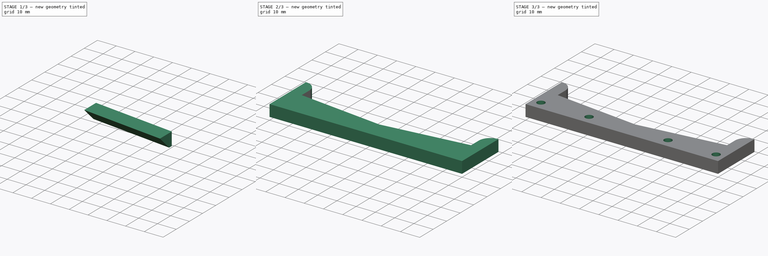
[diagram: build sequence overview — one tinted view per stage of 3, left to right]
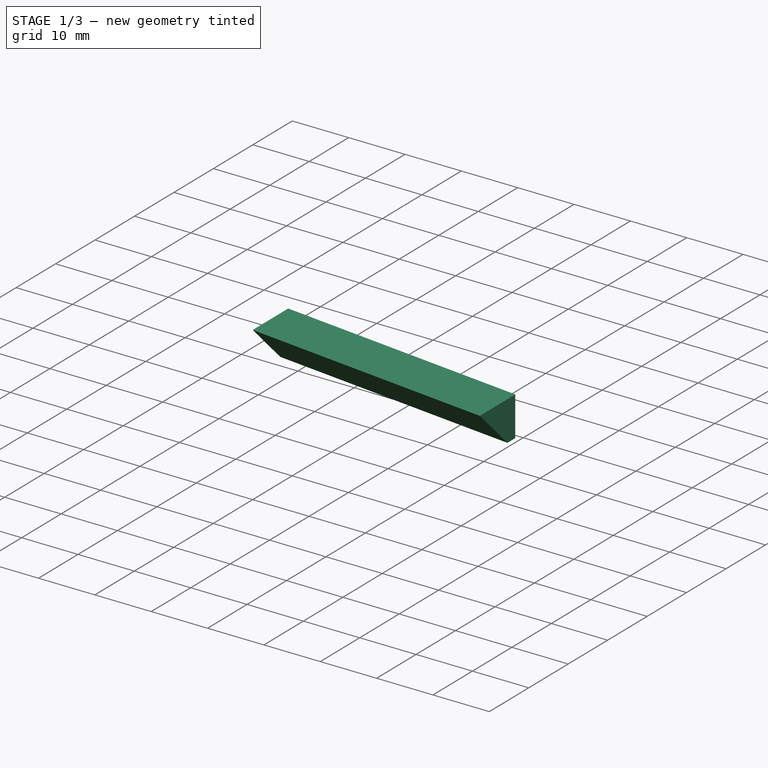
[diagram: stage 1 of 3 — iso view after this stage's code; geometry added in this stage tinted green]
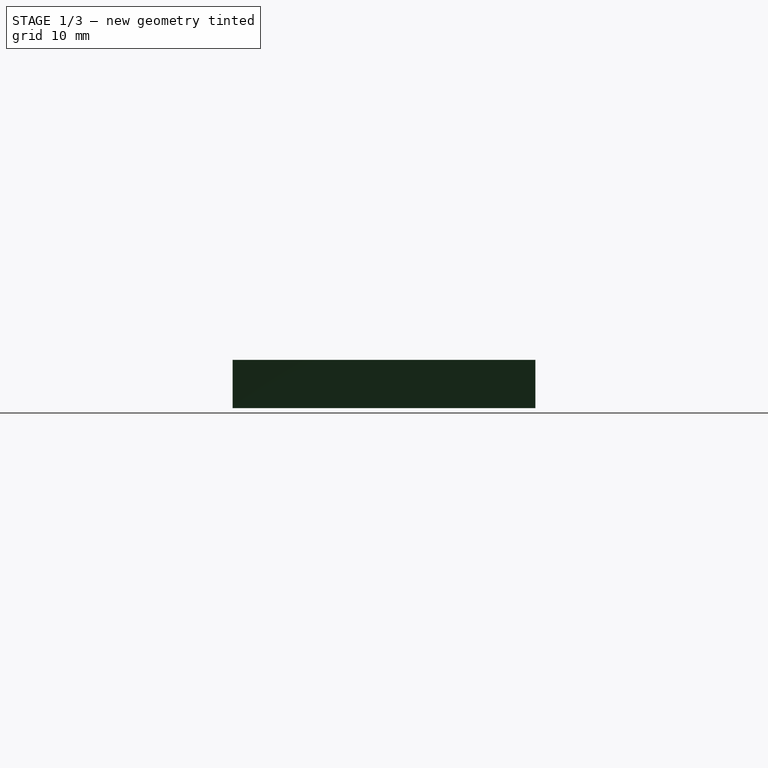
[diagram: stage 1 of 3 — front view after this stage's code; geometry added in this stage tinted green]
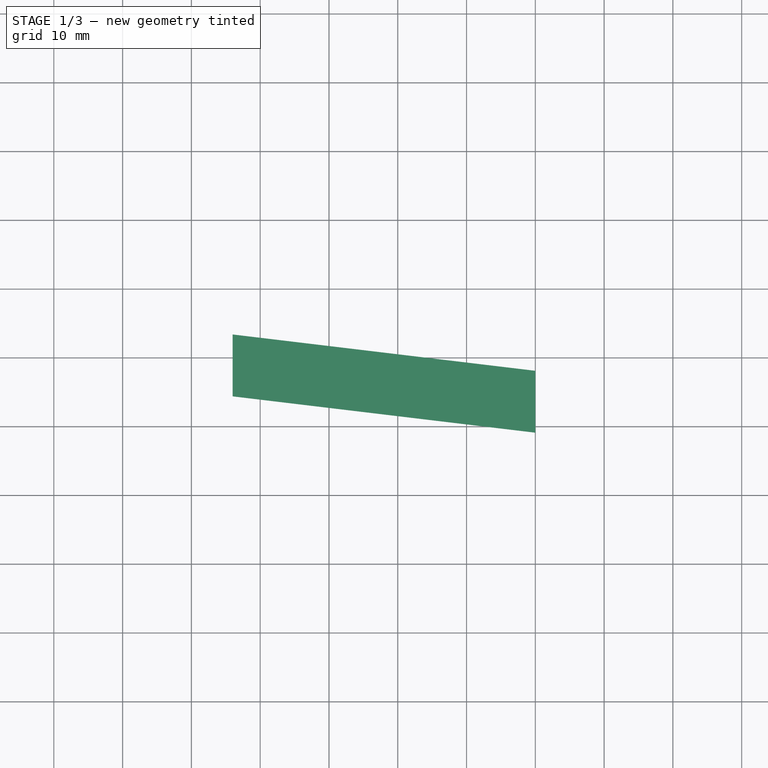
[diagram: stage 1 of 3 — top view after this stage's code; geometry added in this stage tinted green]
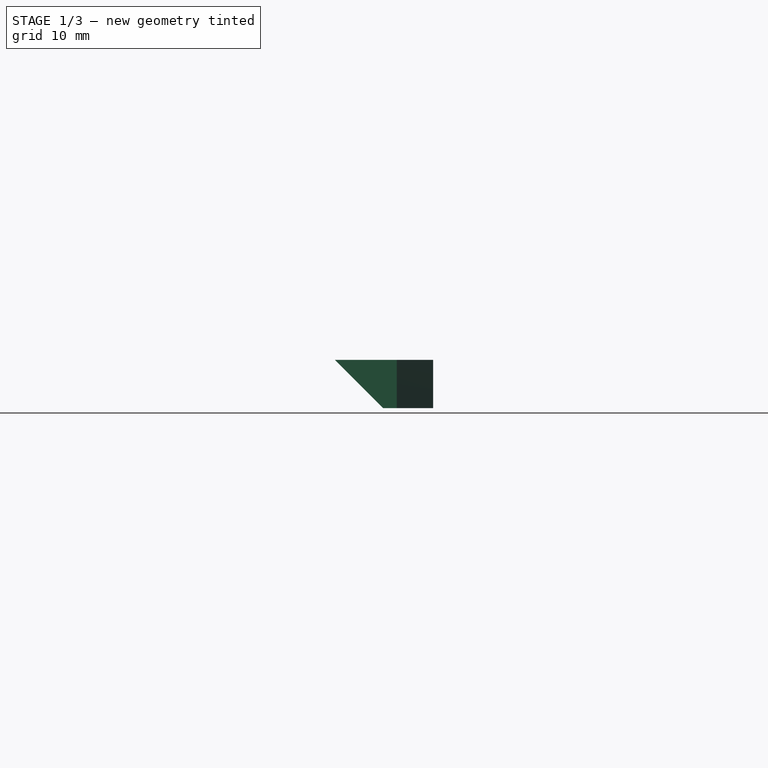
[diagram: stage 1 of 3 — right view after this stage's code; geometry added in this stage tinted green]
FCSTD DOCUMENT
Label: X_Carriage_QuickGuide
objects: Sketcher::SketchObject×3, PartDesign::Pad×1, Part::Sweep×1, Part::Mirroring×1, Part::MultiFuse×1, Part::Cut×1, PartDesign::Pocket×1, PartDesign::LinearPattern×1
note: 12 computed .brp shape members not serialized (recipe doc carries the construction recipe); baked Part::Feature solids carry a one-line shape summary decoded from their .brp

FEATURE [Sketcher::SketchObject] Sketch
  sketch-geometry (9):
    g0: LineSegment StartX=0 StartY=0 StartZ=0 EndX=100 EndY=0 EndZ=0
    g1: LineSegment StartX=0 StartY=27 StartZ=0 EndX=0 EndY=0 EndZ=0
    g2: LineSegment StartX=50 StartY=16 StartZ=0 EndX=6 EndY=21.28 EndZ=0
    g3: ArcOfCircle CenterX=0 CenterY=20.9931 CenterZ=0 NormalX=0 NormalY=0 NormalZ=1 Radius=6.00685 StartAngle=0.0477725 EndAngle=1.5708
    g4: LineSegment [constr] StartX=6 StartY=21.28 StartZ=0 EndX=0 EndY=21.28 EndZ=0
    g5: LineSegment StartX=100 StartY=0 StartZ=0 EndX=100 EndY=27 EndZ=0
    g6: ArcOfCircle CenterX=100 CenterY=20.9931 CenterZ=0 NormalX=0 NormalY=0 NormalZ=1 Radius=6.00685 StartAngle=1.5708 EndAngle=3.09382
    g7: LineSegment StartX=94 StartY=21.28 StartZ=0 EndX=50 EndY=16 EndZ=0
    g8: LineSegment [constr] StartX=94 StartY=21.28 StartZ=0 EndX=100 EndY=21.28 EndZ=0
  constraints (28):
    c: Coincident(g1,g0)
    c: Horizontal(g0)
    c: Vertical(g1)
    c: Coincident(g0,g-1)
    c: Coincident(g3,g2)
    c: Coincident(g3,g1)
    c: DistanceY(g1) = -27
    c: DistanceX(g0) = 100
    c: Coincident(g4,g2)
    c: Horizontal(g4)
    c: DistanceY(g-1,g2) = 16
    c: Coincident(g0,g5)
    c: Vertical(g5)
    c: Coincident(g6,g7)
    c: Coincident(g7,g2)
    c: Equal(g6,g3)
    c: Equal(g5,g1)
    c: Equal(g7,g2)
    c: Coincident(g8,g6)
    c: Horizontal(g8)
    c: PointOnObject(g4,g1)
    c: PointOnObject(g8,g5)
    c: DistanceX(g8) = 6
    c: Coincident(g6,g5)
    c: DistanceY(g8,g5) = 5.72
    c: DistanceY(g4,g1) = 5.72
    c: Equal(g8,g4)
    c: PointOnObject(g3,g1)
FEATURE [PartDesign::Pad] Pad
  Length = 6
  Length2 = 100
  Sketch = -> Sketch
  Type = 0
FEATURE [Sketcher::SketchObject] Sketch001
  Placement = pos=(50,0,0) rot=(0.57735,0.57735,0.57735;2.0944rad)
  sketch-geometry (4):
    g0: LineSegment StartX=18 StartY=0 StartZ=0 EndX=16 EndY=0 EndZ=0
    g1: LineSegment StartX=16 StartY=0 StartZ=0 EndX=9 EndY=7 EndZ=0
    g2: LineSegment StartX=9 StartY=7 StartZ=0 EndX=18 EndY=7 EndZ=0
    g3: LineSegment StartX=18 StartY=7 StartZ=0 EndX=18 EndY=0 EndZ=0
  constraints (12):
    c: Coincident(g0,g1)
    c: Coincident(g1,g2)
    c: Coincident(g2,g3)
    c: Coincident(g3,g0)
    c: Horizontal(g0)
    c: Horizontal(g2)
    c: Vertical(g3)
    c: PointOnObject(g0,g-1)
    c: Angle(g1,g2) = 0.785398
    c: DistanceY(g3) = -7
    c: DistanceX(g0) = -2
    c: DistanceX(g0) = 16
FEATURE [Part::Sweep] Sweep
  Frenet = false
  Sections = -> [Sketch001]
  Solid = true
  Spine = -> Pad [Edge12]
  Transition = 1
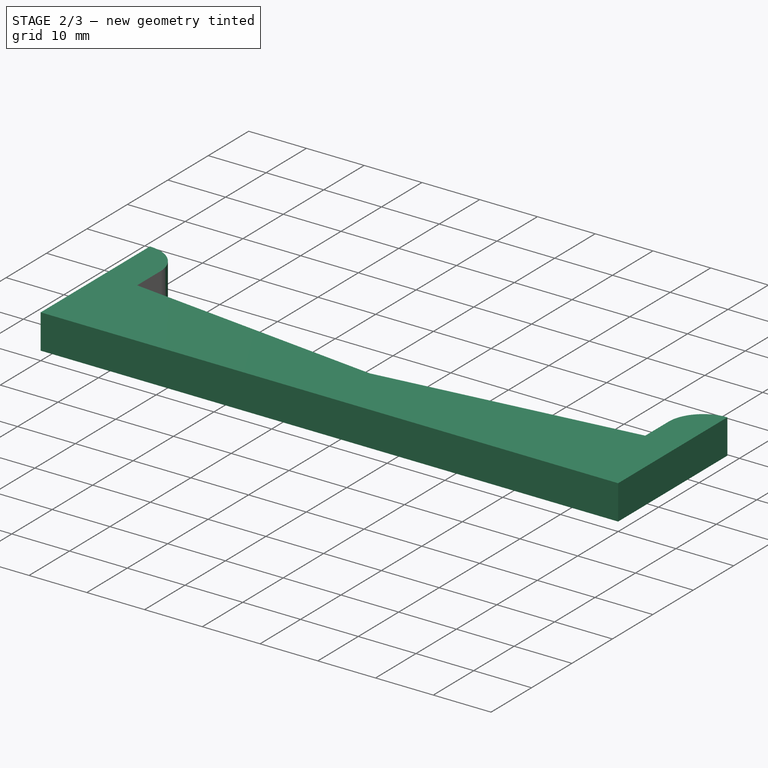
[diagram: stage 2 of 3 — iso view after this stage's code; geometry added in this stage tinted green]
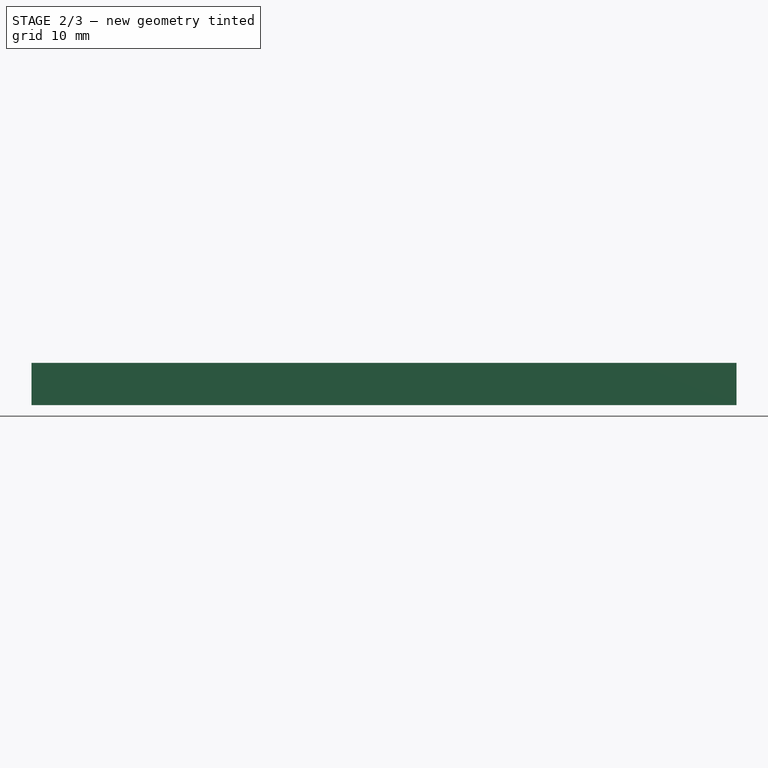
[diagram: stage 2 of 3 — front view after this stage's code; geometry added in this stage tinted green]
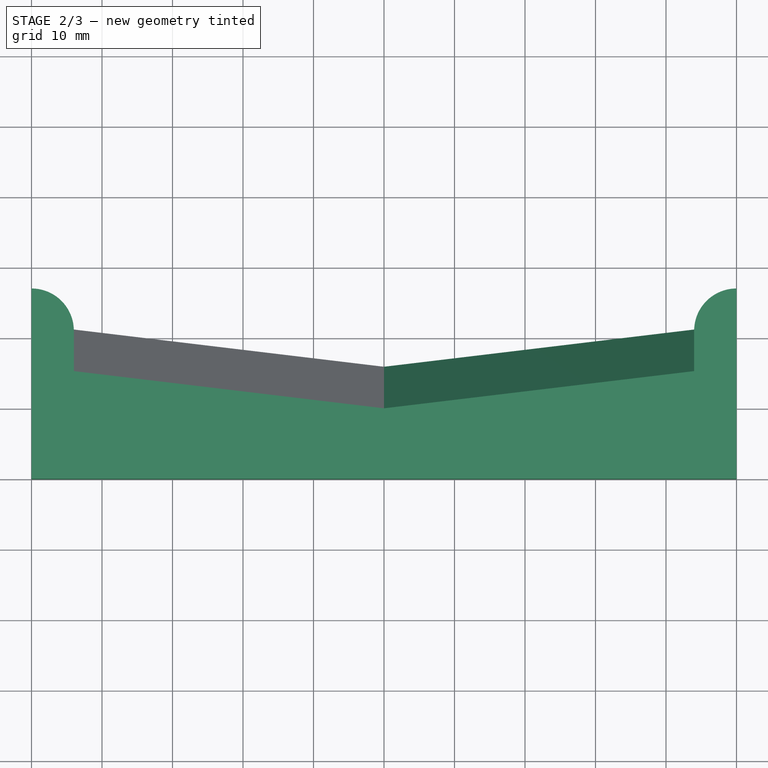
[diagram: stage 2 of 3 — top view after this stage's code; geometry added in this stage tinted green]
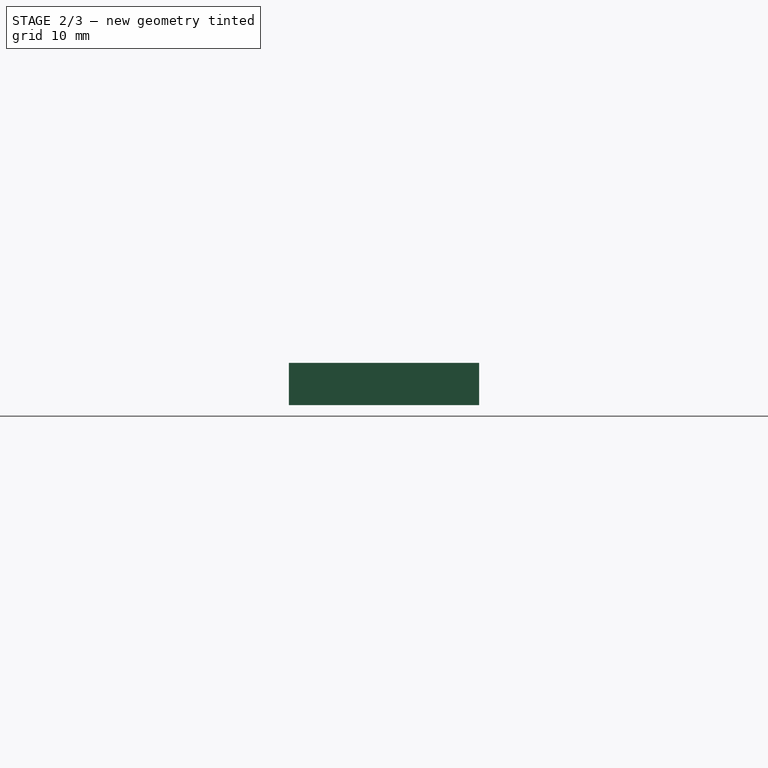
[diagram: stage 2 of 3 — right view after this stage's code; geometry added in this stage tinted green]
FEATURE [Part::Mirroring] Part__Mirroring  label="Sweep (Mirror #1)"
  Base = (50,0,0)
  Normal = (1,0,0)
  Source = -> Sweep
FEATURE [Part::MultiFuse] Fusion
  Shapes = -> [Sweep,Part__Mirroring]
FEATURE [Part::Cut] Cut
  Base = -> Pad
  Tool = -> Fusion
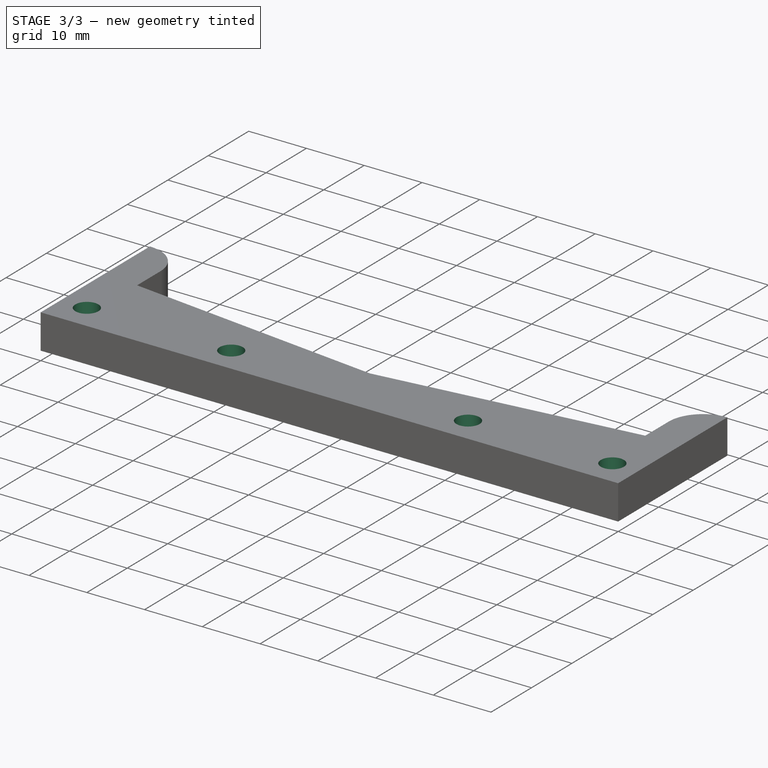
[diagram: stage 3 of 3 — iso view after this stage's code; geometry added in this stage tinted green]
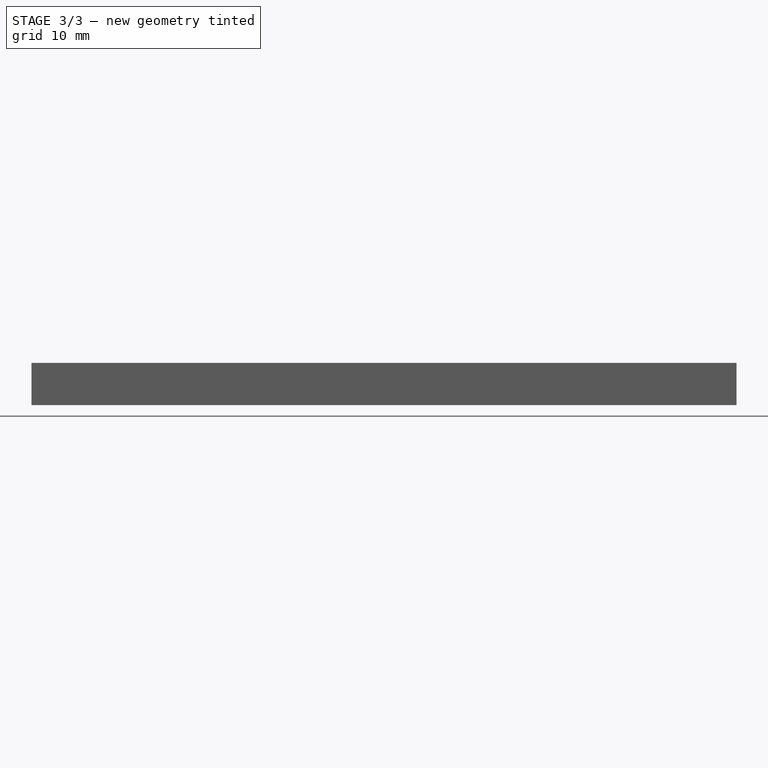
[diagram: stage 3 of 3 — front view after this stage's code; geometry added in this stage tinted green]
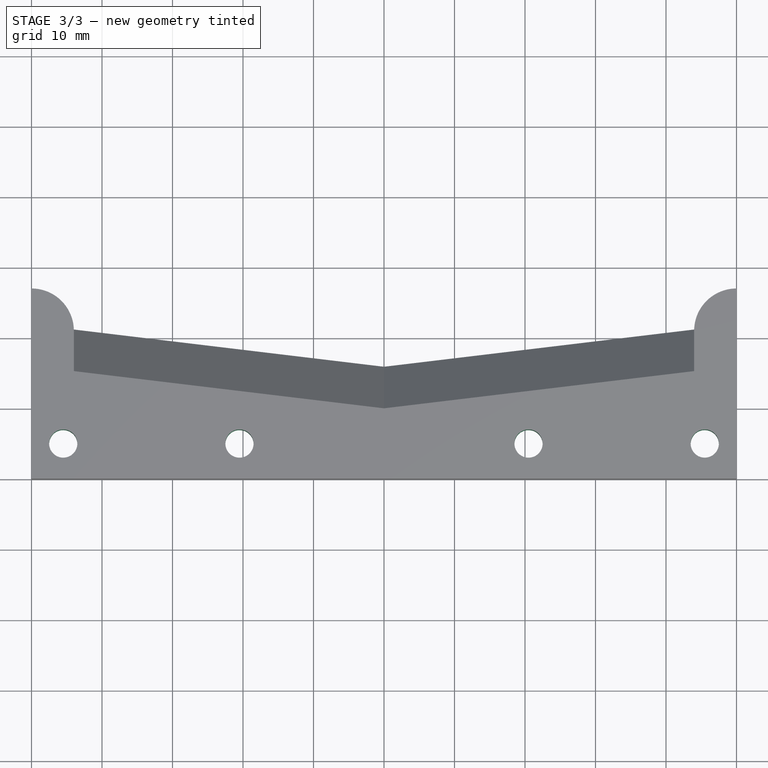
[diagram: stage 3 of 3 — top view after this stage's code; geometry added in this stage tinted green]
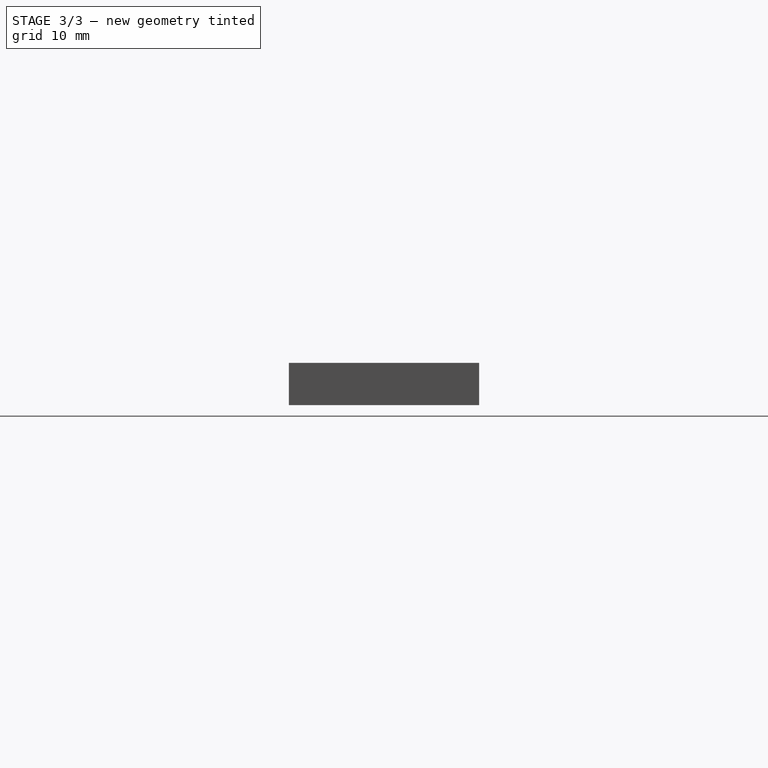
[diagram: stage 3 of 3 — right view after this stage's code; geometry added in this stage tinted green]
FEATURE [Sketcher::SketchObject] Sketch002
  ExternalGeometry = -> [Cut]
  Placement = pos=(0,0,6) rot=(0,0,1;0rad)
  Support = -> Cut [Face5]
  sketch-geometry (3):
    g0: Circle CenterX=4.5 CenterY=5 CenterZ=0 NormalX=0 NormalY=0 NormalZ=1 Radius=2
    g1: LineSegment [constr] StartX=4.5 StartY=5 StartZ=0 EndX=29.5 EndY=5 EndZ=0
    g2: Circle CenterX=29.5 CenterY=5 CenterZ=0 NormalX=0 NormalY=0 NormalZ=1 Radius=2
  constraints (8):
    c: Coincident(g1,g0)
    c: Horizontal(g1)
    c: Coincident(g2,g1)
    c: Equal(g2,g0)
    c: Radius(g2) = 2
    c: DistanceX(g1) = 25
    c: DistanceX(g-1,g0) = 4.5
    c: DistanceY(g-1,g0) = 5
FEATURE [PartDesign::Pocket] Pocket
  Length = 5
  Sketch = -> Sketch002
  Type = 1
FEATURE [PartDesign::LinearPattern] LinearPattern
  Direction = -> Pocket [Edge3]
  Length = 66
  Occurrences = 2
  Originals = -> [Pocket]
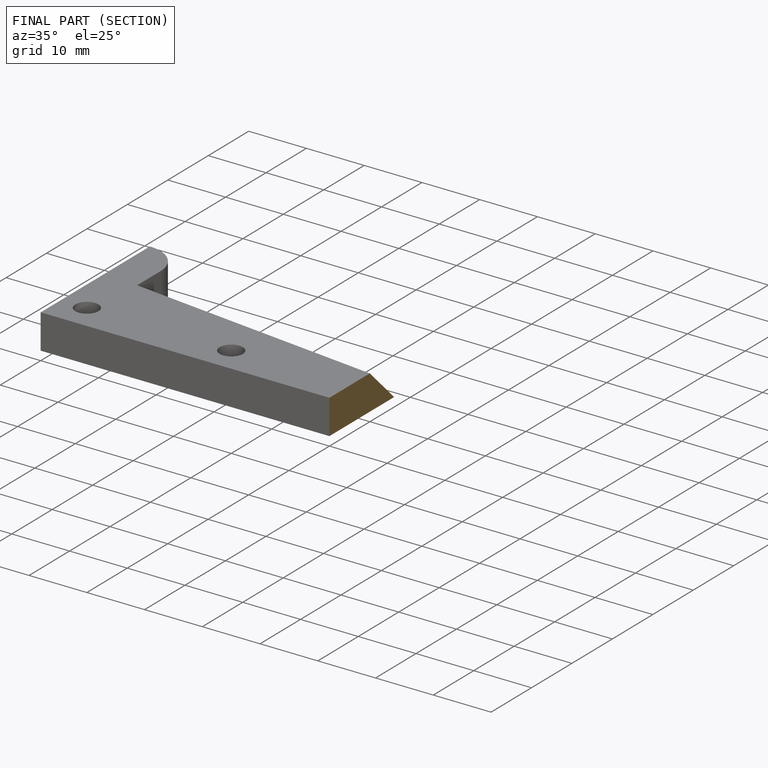
[diagram: finished part — half-section view (interior)]
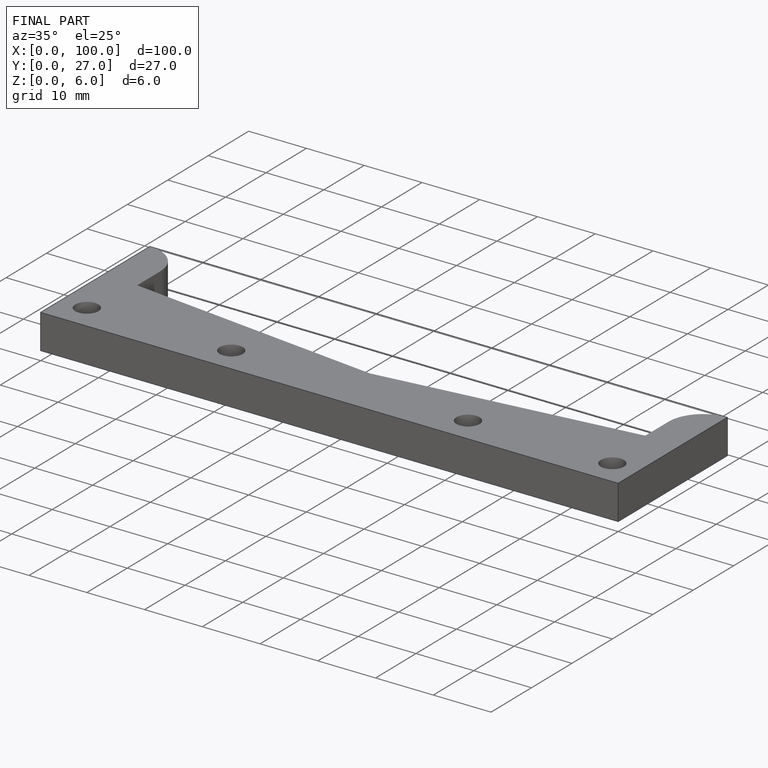
[diagram: finished part — iso view with bounding-box wireframe]
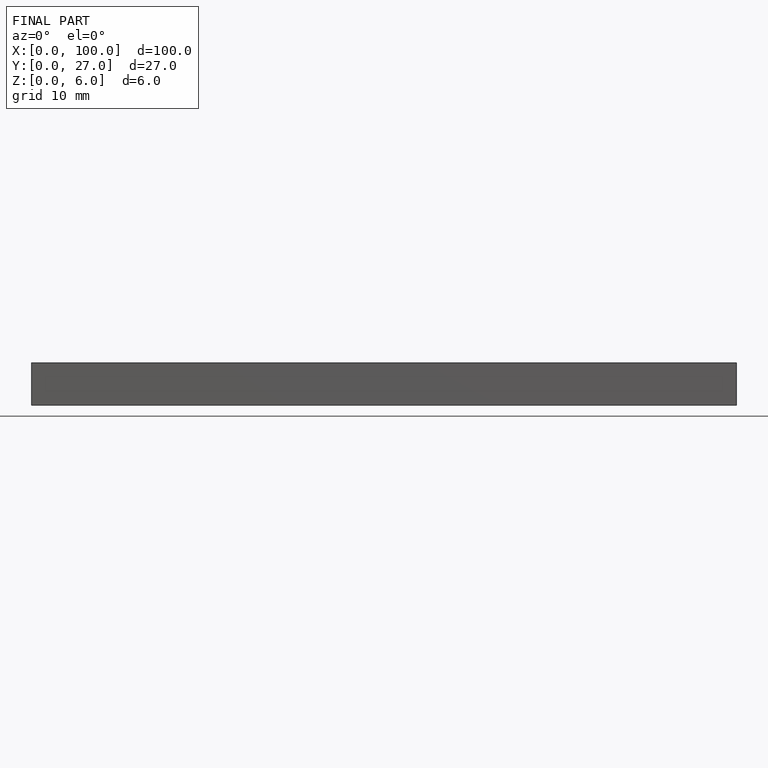
[diagram: finished part — front view with bounding-box wireframe]
